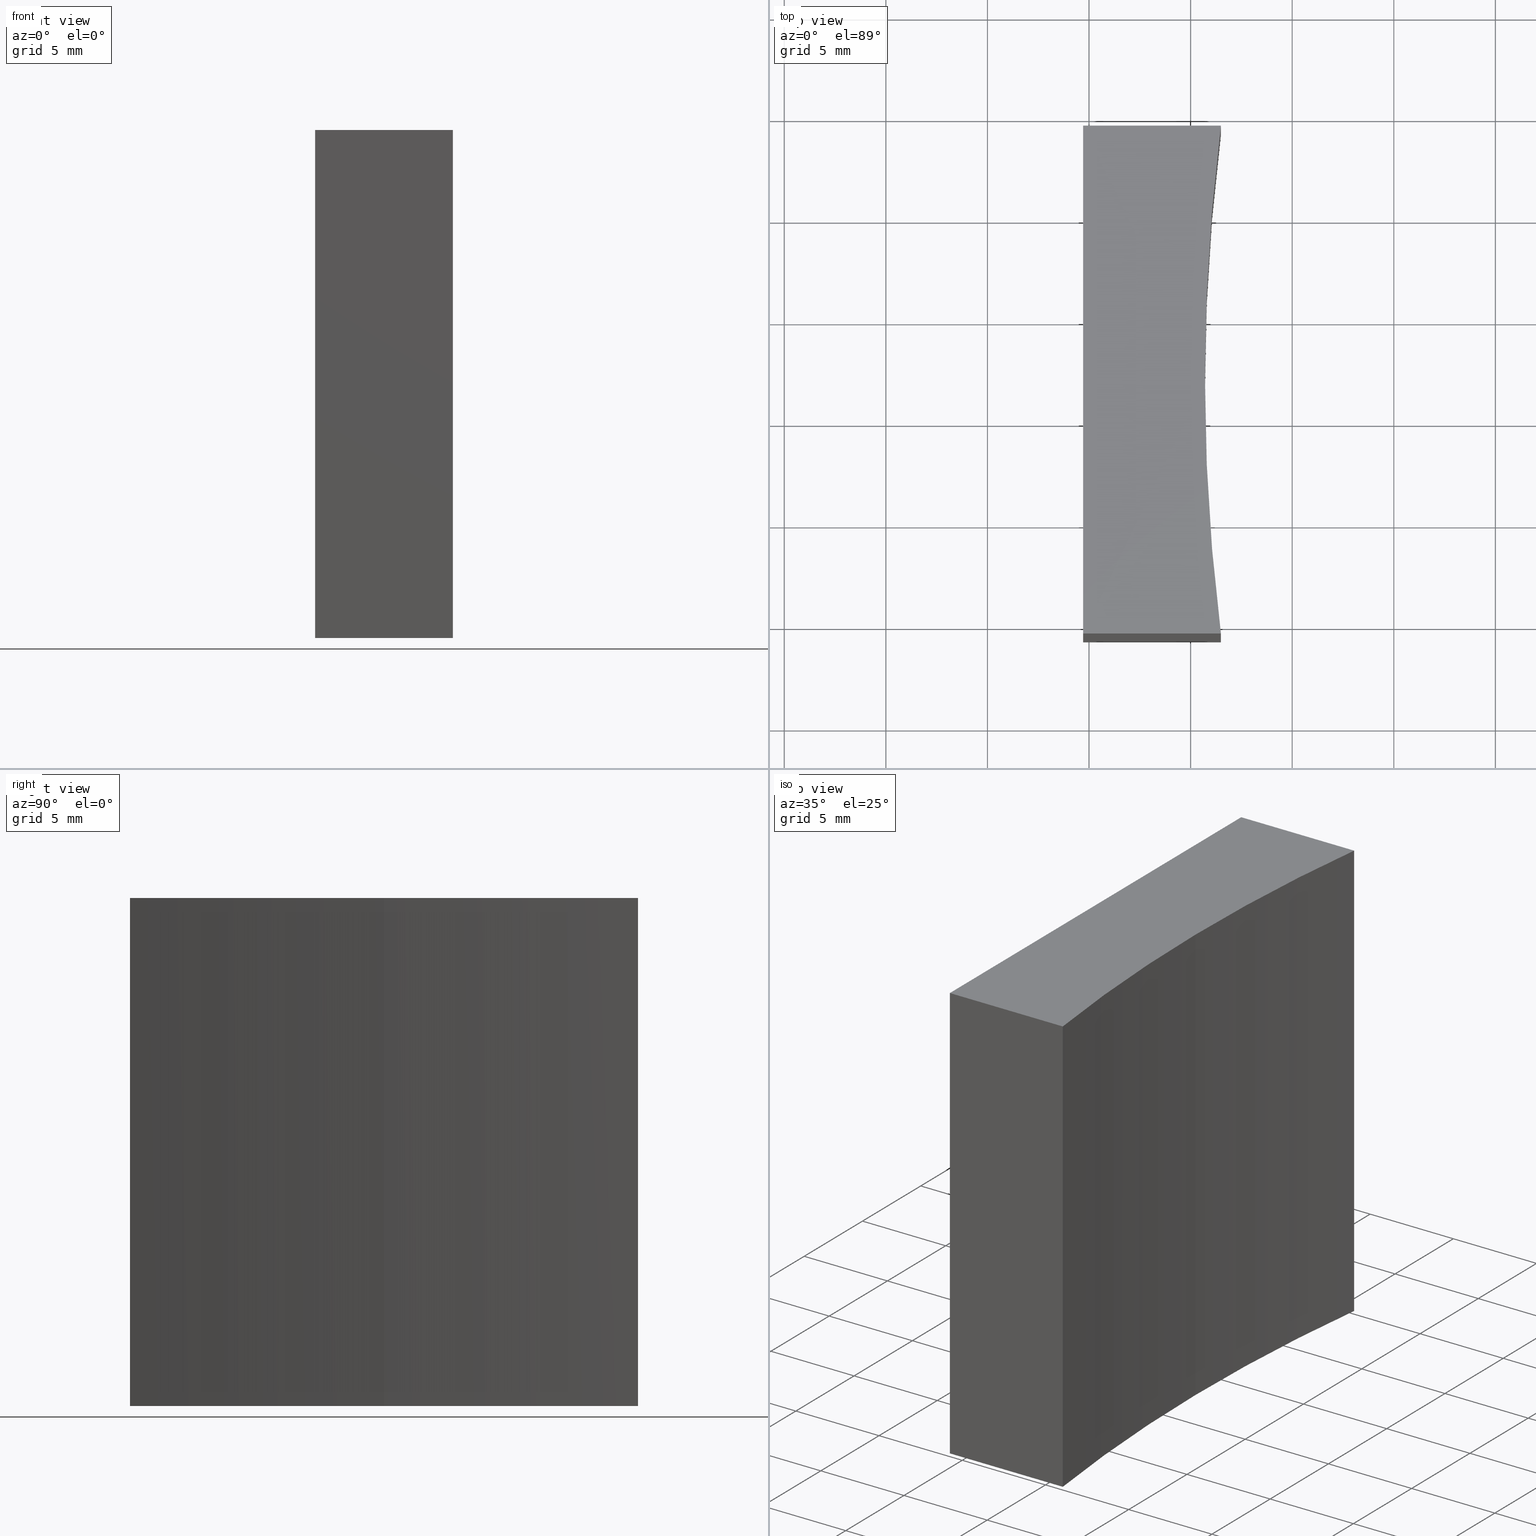
[diagram: canonical four-view strip — front | top / right | iso, engineering-drawing reading convention]
A machine part, canonical four-view strip (front | top / right | iso — engineering-drawing reading convention). The complete STEP part file that produces these views, byte-faithful:
ISO-10303-21;
HEADER;
FILE_DESCRIPTION (( 'STEP AP214' ),
    '1' );
FILE_NAME ('280016.STEP',
    '2019-08-08T02:35:11',
    ( '' ),
    ( '' ),
    'SwSTEP 2.0',
    'SolidWorks 2016',
    '' );
FILE_SCHEMA (( 'AUTOMOTIVE_DESIGN' ));
ENDSEC;

DATA;
#1 = AXIS2_PLACEMENT_3D ( 'NONE', #191, #187, #10 ) ;
#2 = PLANE ( 'NONE',  #199 ) ;
#3 = LINE ( 'NONE', #110, #194 ) ;
#4 = CARTESIAN_POINT ( 'NONE',  ( 291.4914614961174900, 54.35792926776707600, 25.00000000000000000 ) ) ;
#5 = CARTESIAN_POINT ( 'NONE',  ( 284.7071356312820900, 79.35792926776707600, 25.00000000000000000 ) ) ;
#6 = EDGE_CURVE ( 'NONE', #218, #210, #206, .T. ) ;
#7 = CIRCLE ( 'NONE', #17, 99.99999999999997200 ) ;
#8 = FACE_OUTER_BOUND ( 'NONE', #233, .T. ) ;
#9 = DIRECTION ( 'NONE',  ( -0.0000000000000000000, -0.0000000000000000000, -1.000000000000000000 ) ) ;
#10 = DIRECTION ( 'NONE',  ( 1.000000000000000000, 0.0000000000000000000, 0.0000000000000000000 ) ) ;
#11 = ORIENTED_EDGE ( 'NONE', *, *, #182, .F. ) ;
#12 = LINE ( 'NONE', #184, #164 ) ;
#13 = AXIS2_PLACEMENT_3D ( 'NONE', #60, #93, #21 ) ;
#14 = FILL_AREA_STYLE_COLOUR ( '', #149 ) ;
#15 = DIRECTION ( 'NONE',  ( 1.000000000000000000, 0.0000000000000000000, -0.0000000000000000000 ) ) ;
#16 = AXIS2_PLACEMENT_3D ( 'NONE', #222, #40, #90 ) ;
#17 = AXIS2_PLACEMENT_3D ( 'NONE', #42, #166, #95 ) ;
#18 =( NAMED_UNIT ( * ) SI_UNIT ( $, .STERADIAN. ) SOLID_ANGLE_UNIT ( ) );
#19 = LINE ( 'NONE', #109, #179 ) ;
#20 = DIRECTION ( 'NONE',  ( 1.000000000000000000, -0.0000000000000000000, -0.0000000000000000000 ) ) ;
#21 = DIRECTION ( 'NONE',  ( -1.000000000000000000, 0.0000000000000000000, 0.0000000000000000000 ) ) ;
#22 = CARTESIAN_POINT ( 'NONE',  ( 284.7071356312820900, 79.35792926776707600, 25.00000000000000000 ) ) ;
#23 = APPLICATION_CONTEXT ( 'automotive_design' ) ;
#24 = APPLICATION_PROTOCOL_DEFINITION ( 'draft international standard', 'automotive_design', 1998, #97 ) ;
#25 = EDGE_CURVE ( 'NONE', #140, #218, #12, .T. ) ;
#26 = CARTESIAN_POINT ( 'NONE',  ( 0.0000000000000000000, 0.0000000000000000000, 0.0000000000000000000 ) ) ;
#27 = VECTOR ( 'NONE', #133, 1000.000000000000000 ) ;
#28 = ADVANCED_FACE ( 'NONE', ( #8 ), #49, .F. ) ;
#29 = ORIENTED_EDGE ( 'NONE', *, *, #63, .F. ) ;
#30 = DIRECTION ( 'NONE',  ( -0.0000000000000000000, -0.0000000000000000000, -1.000000000000000000 ) ) ;
#31 = ADVANCED_FACE ( 'NONE', ( #122 ), #201, .F. ) ;
#32 = ORIENTED_EDGE ( 'NONE', *, *, #63, .T. ) ;
#33 = VECTOR ( 'NONE', #229, 1000.000000000000000 ) ;
#34 = MECHANICAL_DESIGN_GEOMETRIC_PRESENTATION_REPRESENTATION (  '', ( #230 ), #186 ) ;
#35 = EDGE_LOOP ( 'NONE', ( #202, #108, #197, #70 ) ) ;
#36 = EDGE_CURVE ( 'NONE', #218, #170, #19, .T. ) ;
#37 = DIRECTION ( 'NONE',  ( -0.0000000000000000000, -0.0000000000000000000, -1.000000000000000000 ) ) ;
#38 = EDGE_CURVE ( 'NONE', #92, #207, #66, .T. ) ;
#39 = ORIENTED_EDGE ( 'NONE', *, *, #196, .F. ) ;
#40 = DIRECTION ( 'NONE',  ( -0.0000000000000000000, -0.0000000000000000000, -1.000000000000000000 ) ) ;
#41 = DIRECTION ( 'NONE',  ( 0.0000000000000000000, 0.0000000000000000000, 1.000000000000000000 ) ) ;
#42 = CARTESIAN_POINT ( 'NONE',  ( 390.7071356610396700, 66.85792926776684900, 25.00000000000000000 ) ) ;
#43 = PLANE ( 'NONE',  #131 ) ;
#44 = CYLINDRICAL_SURFACE ( 'NONE', #13, 99.99999999999997200 ) ;
#45 = ORIENTED_EDGE ( 'NONE', *, *, #208, .T. ) ;
#46 = DIRECTION ( 'NONE',  ( -0.0000000000000000000, -0.0000000000000000000, -1.000000000000000000 ) ) ;
#47 = PRODUCT_RELATED_PRODUCT_CATEGORY ( 'part', '', ( #73 ) ) ;
#48 = DIRECTION ( 'NONE',  ( 0.0000000000000000000, 0.0000000000000000000, 1.000000000000000000 ) ) ;
#49 = CYLINDRICAL_SURFACE ( 'NONE', #16, 99.99999999999997200 ) ;
#50 = VECTOR ( 'NONE', #20, 1000.000000000000000 ) ;
#51 = SURFACE_STYLE_FILL_AREA ( #220 ) ;
#52 = AXIS2_PLACEMENT_3D ( 'NONE', #185, #223, #119 ) ;
#53 = ADVANCED_BREP_SHAPE_REPRESENTATION ( '280016', ( #67, #127 ), #180 ) ;
#54 = DIRECTION ( 'NONE',  ( 0.0000000000000000000, 0.0000000000000000000, 1.000000000000000000 ) ) ;
#55 = ORIENTED_EDGE ( 'NONE', *, *, #188, .T. ) ;
#56 = CARTESIAN_POINT ( 'NONE',  ( 291.4914614961174900, 54.35792926776711900, 0.0000000000000000000 ) ) ;
#57 = ORIENTED_EDGE ( 'NONE', *, *, #6, .T. ) ;
#58 = DIRECTION ( 'NONE',  ( 1.000000000000000000, 0.0000000000000000000, -0.0000000000000000000 ) ) ;
#59 = CARTESIAN_POINT ( 'NONE',  ( 291.4914614961174900, 54.35792926776711900, 25.00000000000000000 ) ) ;
#60 = CARTESIAN_POINT ( 'NONE',  ( 390.7071356610396700, 66.85792926776684900, 25.00000000000000000 ) ) ;
#61 = CARTESIAN_POINT ( 'NONE',  ( 290.7071356610396700, 66.85792926776684900, 0.0000000000000000000 ) ) ;
#62 = CARTESIAN_POINT ( 'NONE',  ( 284.7071356312820900, 54.35792926776707600, 0.0000000000000000000 ) ) ;
#63 = EDGE_CURVE ( 'NONE', #72, #92, #3, .T. ) ;
#64 = ADVANCED_FACE ( 'NONE', ( #227 ), #165, .F. ) ;
#65 = DIRECTION ( 'NONE',  ( 1.000000000000000000, 0.0000000000000000000, 0.0000000000000000000 ) ) ;
#66 = LINE ( 'NONE', #74, #204 ) ;
#67 = MANIFOLD_SOLID_BREP ( '͹̨-����1', #75 ) ;
#68 = ORIENTED_EDGE ( 'NONE', *, *, #38, .F. ) ;
#69 = ORIENTED_EDGE ( 'NONE', *, *, #142, .T. ) ;
#70 = ORIENTED_EDGE ( 'NONE', *, *, #76, .T. ) ;
#71 = EDGE_LOOP ( 'NONE', ( #181, #159, #212, #57 ) ) ;
#72 = VERTEX_POINT ( 'NONE', #132 ) ;
#73 = PRODUCT ( '280016', '280016', '', ( #152 ) ) ;
#74 = CARTESIAN_POINT ( 'NONE',  ( 284.7071356312820900, 79.35792926776707600, 0.0000000000000000000 ) ) ;
#75 = CLOSED_SHELL ( 'NONE', ( #28, #64, #100, #125, #195, #173, #31 ) ) ;
#76 = EDGE_CURVE ( 'NONE', #140, #207, #238, .T. ) ;
#77 = EDGE_LOOP ( 'NONE', ( #39, #114, #102, #45 ) ) ;
#78 = CARTESIAN_POINT ( 'NONE',  ( 291.4914614961175500, 79.35792926776707600, 0.0000000000000000000 ) ) ;
#79 = DIRECTION ( 'NONE',  ( -0.0000000000000000000, -0.0000000000000000000, -1.000000000000000000 ) ) ;
#80 = CARTESIAN_POINT ( 'NONE',  ( 390.7071356610396700, 66.85792926776684900, 0.0000000000000000000 ) ) ;
#81 =( NAMED_UNIT ( * ) SI_UNIT ( $, .STERADIAN. ) SOLID_ANGLE_UNIT ( ) );
#82 = VERTEX_POINT ( 'NONE', #150 ) ;
#83 = APPLICATION_PROTOCOL_DEFINITION ( 'draft international standard', 'automotive_design', 1998, #23 ) ;
#84 = CARTESIAN_POINT ( 'NONE',  ( 284.7071356312820900, 54.35792926776707600, 25.00000000000000000 ) ) ;
#85 = EDGE_CURVE ( 'NONE', #210, #104, #98, .T. ) ;
#86 = EDGE_LOOP ( 'NONE', ( #138, #124, #68, #161, #158 ) ) ;
#87 = CARTESIAN_POINT ( 'NONE',  ( 284.7071356312820900, 54.35792926776707600, 25.00000000000000000 ) ) ;
#88 = PRODUCT_DEFINITION_FORMATION_WITH_SPECIFIED_SOURCE ( '�κ�', '', #73, .NOT_KNOWN. ) ;
#89 = DIRECTION ( 'NONE',  ( -1.000000000000000000, -0.0000000000000000000, -0.0000000000000000000 ) ) ;
#90 = DIRECTION ( 'NONE',  ( -1.000000000000000000, 0.0000000000000000000, 0.0000000000000000000 ) ) ;
#91 = CIRCLE ( 'NONE', #106, 99.99999999999997200 ) ;
#92 = VERTEX_POINT ( 'NONE', #78 ) ;
#93 = DIRECTION ( 'NONE',  ( -0.0000000000000000000, -0.0000000000000000000, -1.000000000000000000 ) ) ;
#94 = SURFACE_SIDE_STYLE ('',( #51 ) ) ;
#95 = DIRECTION ( 'NONE',  ( 1.000000000000000000, 0.0000000000000000000, 0.0000000000000000000 ) ) ;
#96 = CARTESIAN_POINT ( 'NONE',  ( 290.7071356610396700, 66.85792926776684900, 25.00000000000000000 ) ) ;
#97 = APPLICATION_CONTEXT ( 'automotive_design' ) ;
#98 = LINE ( 'NONE', #224, #50 ) ;
#99 = FILL_AREA_STYLE_COLOUR ( '', #111 ) ;
#100 = ADVANCED_FACE ( 'NONE', ( #116 ), #44, .F. ) ;
#101 = CARTESIAN_POINT ( 'NONE',  ( 284.7071356312820900, 66.85792926776707600, 0.0000000000000000000 ) ) ;
#102 = ORIENTED_EDGE ( 'NONE', *, *, #157, .T. ) ;
#103 =( GEOMETRIC_REPRESENTATION_CONTEXT ( 3 ) GLOBAL_UNCERTAINTY_ASSIGNED_CONTEXT ( ( #171 ) ) GLOBAL_UNIT_ASSIGNED_CONTEXT ( ( #120, #123, #175 ) ) REPRESENTATION_CONTEXT ( 'NONE', 'WORKASPACE' ) );
#104 = VERTEX_POINT ( 'NONE', #56 ) ;
#105 = PRODUCT_DEFINITION_SHAPE ( 'NONE', 'NONE',  #235 ) ;
#106 = AXIS2_PLACEMENT_3D ( 'NONE', #169, #30, #65 ) ;
#107 = EDGE_LOOP ( 'NONE', ( #177, #234, #162, #32 ) ) ;
#108 = ORIENTED_EDGE ( 'NONE', *, *, #6, .F. ) ;
#109 = CARTESIAN_POINT ( 'NONE',  ( 291.4914614961174900, 54.35792926776707600, 25.00000000000000000 ) ) ;
#110 = CARTESIAN_POINT ( 'NONE',  ( 291.4914614961175500, 79.35792926776707600, 25.00000000000000000 ) ) ;
#111 = COLOUR_RGB ( '',1.000000000000000000, 1.000000000000000000, 1.000000000000000000 ) ;
#112 = MECHANICAL_DESIGN_GEOMETRIC_PRESENTATION_REPRESENTATION (  '', ( #192 ), #103 ) ;
#113 = AXIS2_PLACEMENT_3D ( 'NONE', #129, #54, #15 ) ;
#114 = ORIENTED_EDGE ( 'NONE', *, *, #215, .F. ) ;
#115 = PRESENTATION_STYLE_ASSIGNMENT (( #136 ) ) ;
#116 = FACE_OUTER_BOUND ( 'NONE', #77, .T. ) ;
#117 = DIRECTION ( 'NONE',  ( 0.0000000000000000000, 0.0000000000000000000, 1.000000000000000000 ) ) ;
#118 = DIRECTION ( 'NONE',  ( 0.0000000000000000000, 1.000000000000000000, -0.0000000000000000000 ) ) ;
#119 = DIRECTION ( 'NONE',  ( 0.0000000000000000000, -0.0000000000000000000, -1.000000000000000000 ) ) ;
#120 =( LENGTH_UNIT ( ) NAMED_UNIT ( * ) SI_UNIT ( .MILLI., .METRE. ) );
#121 = FILL_AREA_STYLE ('',( #99 ) ) ;
#122 = FACE_OUTER_BOUND ( 'NONE', #86, .T. ) ;
#123 =( NAMED_UNIT ( * ) PLANE_ANGLE_UNIT ( ) SI_UNIT ( $, .RADIAN. ) );
#124 = ORIENTED_EDGE ( 'NONE', *, *, #237, .F. ) ;
#125 = ADVANCED_FACE ( 'NONE', ( #144 ), #167, .F. ) ;
#126 = VECTOR ( 'NONE', #236, 1000.000000000000000 ) ;
#127 = AXIS2_PLACEMENT_3D ( 'NONE', #26, #48, #226 ) ;
#128 = DIRECTION ( 'NONE',  ( 1.000000000000000000, -0.0000000000000000000, -0.0000000000000000000 ) ) ;
#129 = CARTESIAN_POINT ( 'NONE',  ( 390.7071356610396700, 66.85792926776684900, 0.0000000000000000000 ) ) ;
#130 = FACE_OUTER_BOUND ( 'NONE', #141, .T. ) ;
#131 = AXIS2_PLACEMENT_3D ( 'NONE', #148, #41, #58 ) ;
#132 = CARTESIAN_POINT ( 'NONE',  ( 291.4914614961175500, 79.35792926776707600, 25.00000000000000000 ) ) ;
#133 = DIRECTION ( 'NONE',  ( -1.000000000000000000, -0.0000000000000000000, -0.0000000000000000000 ) ) ;
#134 = DIRECTION ( 'NONE',  ( -0.0000000000000000000, -0.0000000000000000000, -1.000000000000000000 ) ) ;
#135 = CARTESIAN_POINT ( 'NONE',  ( 284.7071356312820900, 79.35792926776707600, 25.00000000000000000 ) ) ;
#136 = SURFACE_STYLE_USAGE ( .BOTH. , #139 ) ;
#137 = SHAPE_DEFINITION_REPRESENTATION ( #105, #53 ) ;
#138 = ORIENTED_EDGE ( 'NONE', *, *, #85, .F. ) ;
#139 = SURFACE_SIDE_STYLE ('',( #209 ) ) ;
#140 = VERTEX_POINT ( 'NONE', #135 ) ;
#141 = EDGE_LOOP ( 'NONE', ( #147, #160, #155, #221, #69 ) ) ;
#142 = EDGE_CURVE ( 'NONE', #72, #140, #189, .T. ) ;
#143 = LINE ( 'NONE', #96, #232 ) ;
#144 = FACE_OUTER_BOUND ( 'NONE', #107, .T. ) ;
#145 = ORIENTED_EDGE ( 'NONE', *, *, #196, .T. ) ;
#146 = PRESENTATION_STYLE_ASSIGNMENT (( #205 ) ) ;
#147 = ORIENTED_EDGE ( 'NONE', *, *, #25, .T. ) ;
#148 = CARTESIAN_POINT ( 'NONE',  ( 390.7071356610396700, 66.85792926776684900, 25.00000000000000000 ) ) ;
#149 = COLOUR_RGB ( '',1.000000000000000000, 1.000000000000000000, 1.000000000000000000 ) ;
#150 = CARTESIAN_POINT ( 'NONE',  ( 290.7071356610396700, 66.85792926776684900, 25.00000000000000000 ) ) ;
#151 = CARTESIAN_POINT ( 'NONE',  ( 284.7071356312820900, 79.35792926776707600, 0.0000000000000000000 ) ) ;
#152 = PRODUCT_CONTEXT ( 'NONE', #23, 'mechanical' ) ;
#153 = CARTESIAN_POINT ( 'NONE',  ( 284.7071356312820900, 66.85792926776707600, 25.00000000000000000 ) ) ;
#154 = DIRECTION ( 'NONE',  ( 0.0000000000000000000, 0.0000000000000000000, -1.000000000000000000 ) ) ;
#155 = ORIENTED_EDGE ( 'NONE', *, *, #215, .T. ) ;
#156 = PRODUCT_DEFINITION_CONTEXT ( 'detailed design', #97, 'design' ) ;
#157 = EDGE_CURVE ( 'NONE', #170, #104, #214, .T. ) ;
#158 = ORIENTED_EDGE ( 'NONE', *, *, #208, .F. ) ;
#159 = ORIENTED_EDGE ( 'NONE', *, *, #157, .F. ) ;
#160 = ORIENTED_EDGE ( 'NONE', *, *, #36, .T. ) ;
#161 = ORIENTED_EDGE ( 'NONE', *, *, #188, .F. ) ;
#162 = ORIENTED_EDGE ( 'NONE', *, *, #142, .F. ) ;
#163 = AXIS2_PLACEMENT_3D ( 'NONE', #80, #46, #174 ) ;
#164 = VECTOR ( 'NONE', #183, 1000.000000000000000 ) ;
#165 = PLANE ( 'NONE',  #231 ) ;
#166 = DIRECTION ( 'NONE',  ( -0.0000000000000000000, -0.0000000000000000000, -1.000000000000000000 ) ) ;
#167 = PLANE ( 'NONE',  #52 ) ;
#168 = FACE_OUTER_BOUND ( 'NONE', #35, .T. ) ;
#169 = CARTESIAN_POINT ( 'NONE',  ( 390.7071356610396700, 66.85792926776684900, 25.00000000000000000 ) ) ;
#170 = VERTEX_POINT ( 'NONE', #59 ) ;
#171 = UNCERTAINTY_MEASURE_WITH_UNIT (LENGTH_MEASURE( 1.000000000000000100E-005 ), #120, 'distance_accuracy_value', 'NONE');
#172 = VECTOR ( 'NONE', #134, 1000.000000000000000 ) ;
#173 = ADVANCED_FACE ( 'NONE', ( #130 ), #43, .T. ) ;
#174 = DIRECTION ( 'NONE',  ( 1.000000000000000000, 0.0000000000000000000, 0.0000000000000000000 ) ) ;
#175 =( NAMED_UNIT ( * ) SI_UNIT ( $, .STERADIAN. ) SOLID_ANGLE_UNIT ( ) );
#176 = LINE ( 'NONE', #101, #33 ) ;
#177 = ORIENTED_EDGE ( 'NONE', *, *, #38, .T. ) ;
#178 = CIRCLE ( 'NONE', #1, 99.99999999999997200 ) ;
#179 = VECTOR ( 'NONE', #128, 1000.000000000000000 ) ;
#180 =( GEOMETRIC_REPRESENTATION_CONTEXT ( 3 ) GLOBAL_UNCERTAINTY_ASSIGNED_CONTEXT ( ( #200 ) ) GLOBAL_UNIT_ASSIGNED_CONTEXT ( ( #211, #193, #81 ) ) REPRESENTATION_CONTEXT ( 'NONE', 'WORKASPACE' ) );
#181 = ORIENTED_EDGE ( 'NONE', *, *, #85, .T. ) ;
#182 = EDGE_CURVE ( 'NONE', #82, #72, #7, .T. ) ;
#183 = DIRECTION ( 'NONE',  ( -0.0000000000000000000, -1.000000000000000000, -0.0000000000000000000 ) ) ;
#184 = CARTESIAN_POINT ( 'NONE',  ( 284.7071356312820900, 54.35792926776707600, 25.00000000000000000 ) ) ;
#185 = CARTESIAN_POINT ( 'NONE',  ( 284.7071356312820900, 79.35792926776707600, 25.00000000000000000 ) ) ;
#186 =( GEOMETRIC_REPRESENTATION_CONTEXT ( 3 ) GLOBAL_UNCERTAINTY_ASSIGNED_CONTEXT ( ( #216 ) ) GLOBAL_UNIT_ASSIGNED_CONTEXT ( ( #225, #203, #18 ) ) REPRESENTATION_CONTEXT ( 'NONE', 'WORKASPACE' ) );
#187 = DIRECTION ( 'NONE',  ( -0.0000000000000000000, -0.0000000000000000000, -1.000000000000000000 ) ) ;
#188 = EDGE_CURVE ( 'NONE', #198, #92, #217, .T. ) ;
#189 = LINE ( 'NONE', #22, #27 ) ;
#190 = VECTOR ( 'NONE', #79, 1000.000000000000000 ) ;
#191 = CARTESIAN_POINT ( 'NONE',  ( 390.7071356610396700, 66.85792926776684900, 0.0000000000000000000 ) ) ;
#192 = STYLED_ITEM ( 'NONE', ( #115 ), #53 ) ;
#193 =( NAMED_UNIT ( * ) PLANE_ANGLE_UNIT ( ) SI_UNIT ( $, .RADIAN. ) );
#194 = VECTOR ( 'NONE', #37, 1000.000000000000000 ) ;
#195 = ADVANCED_FACE ( 'NONE', ( #168 ), #2, .F. ) ;
#196 = EDGE_CURVE ( 'NONE', #82, #198, #143, .T. ) ;
#197 = ORIENTED_EDGE ( 'NONE', *, *, #25, .F. ) ;
#198 = VERTEX_POINT ( 'NONE', #61 ) ;
#199 = AXIS2_PLACEMENT_3D ( 'NONE', #153, #228, #154 ) ;
#200 = UNCERTAINTY_MEASURE_WITH_UNIT (LENGTH_MEASURE( 1.000000000000000100E-005 ), #211, 'distance_accuracy_value', 'NONE');
#201 = PLANE ( 'NONE',  #113 ) ;
#202 = ORIENTED_EDGE ( 'NONE', *, *, #237, .T. ) ;
#203 =( NAMED_UNIT ( * ) PLANE_ANGLE_UNIT ( ) SI_UNIT ( $, .RADIAN. ) );
#204 = VECTOR ( 'NONE', #89, 1000.000000000000000 ) ;
#205 = SURFACE_STYLE_USAGE ( .BOTH. , #94 ) ;
#206 = LINE ( 'NONE', #87, #126 ) ;
#207 = VERTEX_POINT ( 'NONE', #151 ) ;
#208 = EDGE_CURVE ( 'NONE', #104, #198, #178, .T. ) ;
#209 = SURFACE_STYLE_FILL_AREA ( #121 ) ;
#210 = VERTEX_POINT ( 'NONE', #62 ) ;
#211 =( LENGTH_UNIT ( ) NAMED_UNIT ( * ) SI_UNIT ( .MILLI., .METRE. ) );
#212 = ORIENTED_EDGE ( 'NONE', *, *, #36, .F. ) ;
#213 = PRESENTATION_LAYER_ASSIGNMENT (  '', '', ( #192 ) ) ;
#214 = LINE ( 'NONE', #239, #172 ) ;
#215 = EDGE_CURVE ( 'NONE', #170, #82, #91, .T. ) ;
#216 = UNCERTAINTY_MEASURE_WITH_UNIT (LENGTH_MEASURE( 1.000000000000000100E-005 ), #225, 'distance_accuracy_value', 'NONE');
#217 = CIRCLE ( 'NONE', #163, 99.99999999999997200 ) ;
#218 = VERTEX_POINT ( 'NONE', #84 ) ;
#219 = PRESENTATION_LAYER_ASSIGNMENT (  '', '', ( #230 ) ) ;
#220 = FILL_AREA_STYLE ('',( #14 ) ) ;
#221 = ORIENTED_EDGE ( 'NONE', *, *, #182, .T. ) ;
#222 = CARTESIAN_POINT ( 'NONE',  ( 390.7071356610396700, 66.85792926776684900, 25.00000000000000000 ) ) ;
#223 = DIRECTION ( 'NONE',  ( 0.0000000000000000000, -1.000000000000000000, 0.0000000000000000000 ) ) ;
#224 = CARTESIAN_POINT ( 'NONE',  ( 291.4914614961174900, 54.35792926776707600, 0.0000000000000000000 ) ) ;
#225 =( LENGTH_UNIT ( ) NAMED_UNIT ( * ) SI_UNIT ( .MILLI., .METRE. ) );
#226 = DIRECTION ( 'NONE',  ( 1.000000000000000000, 0.0000000000000000000, 0.0000000000000000000 ) ) ;
#227 = FACE_OUTER_BOUND ( 'NONE', #71, .T. ) ;
#228 = DIRECTION ( 'NONE',  ( 1.000000000000000000, 0.0000000000000000000, 0.0000000000000000000 ) ) ;
#229 = DIRECTION ( 'NONE',  ( -0.0000000000000000000, -1.000000000000000000, -0.0000000000000000000 ) ) ;
#230 = STYLED_ITEM ( 'NONE', ( #146 ), #67 ) ;
#231 = AXIS2_PLACEMENT_3D ( 'NONE', #4, #118, #117 ) ;
#232 = VECTOR ( 'NONE', #9, 1000.000000000000000 ) ;
#233 = EDGE_LOOP ( 'NONE', ( #11, #145, #55, #29 ) ) ;
#234 = ORIENTED_EDGE ( 'NONE', *, *, #76, .F. ) ;
#235 = PRODUCT_DEFINITION ( 'δ֪', '', #88, #156 ) ;
#236 = DIRECTION ( 'NONE',  ( -0.0000000000000000000, -0.0000000000000000000, -1.000000000000000000 ) ) ;
#237 = EDGE_CURVE ( 'NONE', #207, #210, #176, .T. ) ;
#238 = LINE ( 'NONE', #5, #190 ) ;
#239 = CARTESIAN_POINT ( 'NONE',  ( 291.4914614961174900, 54.35792926776711900, 25.00000000000000000 ) ) ;
ENDSEC;
END-ISO-10303-21;
